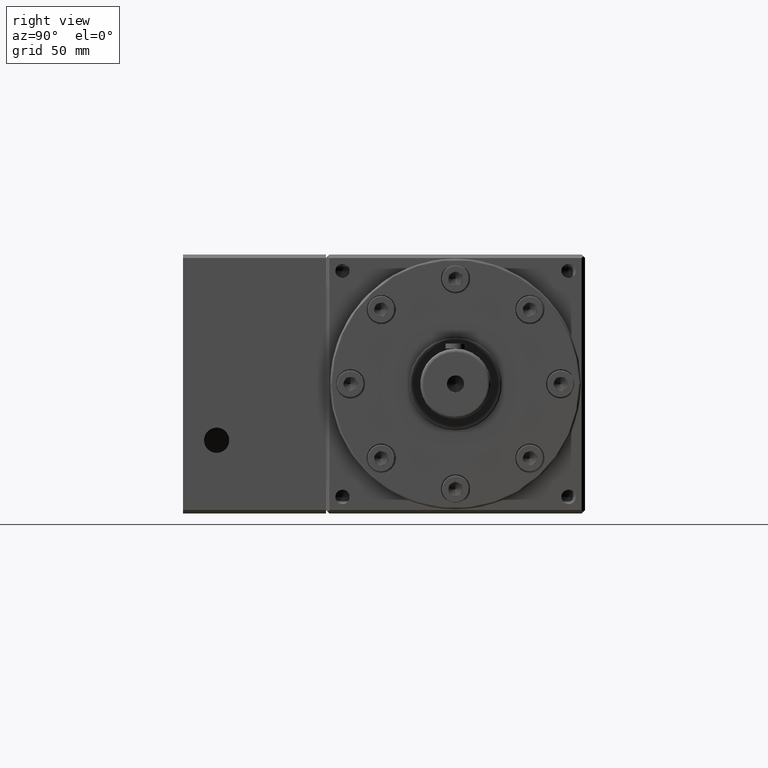
[diagram: clean part render]
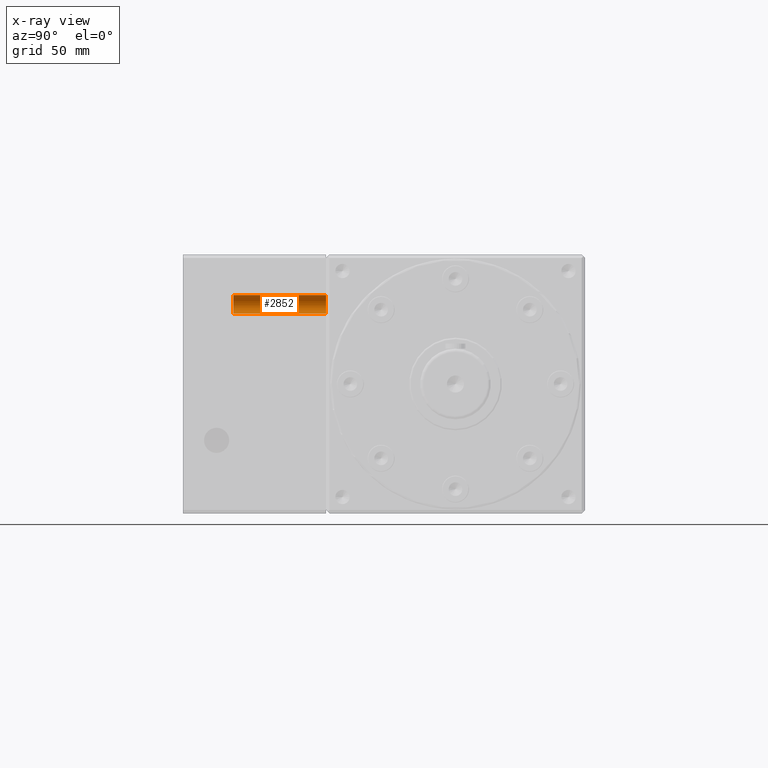
[diagram: x-ray — body ghosted, one internal face saturated and labeled with its STEP entity id]
A machine part, right view, then the same camera in x-ray: the body is ghosted and one INTERNAL B-rep face — a face not visible from any outside direction — is saturated and labeled: STEP entity #2852.
In plain terms, the highlighted cylindrical surface (edge-blend (fillet) strip) has radius 5.5 mm, axis along (-0, -1, -0).
Its self-contained STEP definition (entity closure, byte-faithful):
#74 = VERTEX_POINT ( 'NONE', #6468 ) ;
#2139 = VERTEX_POINT ( 'NONE', #10048 ) ;
#2171 = VERTEX_POINT ( 'NONE', #11179 ) ;
#2852 = ADVANCED_FACE ( 'NONE', ( #3334 ), #18811, .F. ) ;
#3334 = FACE_OUTER_BOUND ( 'NONE', #9226, .T. ) ;
#3339 = ORIENTED_EDGE ( 'NONE', *, *, #6056, .F. ) ;
#5024 = VECTOR ( 'NONE', #18261, 1000.000000000000000 ) ;
#5163 = VERTEX_POINT ( 'NONE', #17318 ) ;
#6056 = EDGE_CURVE ( 'NONE', #2139, #2171, #10904, .T. ) ;
#6162 = CARTESIAN_POINT ( 'NONE',  ( 67.58004365384232400, 150.0000000000000900, 47.32005599896459800 ) ) ;
#6297 = ORIENTED_EDGE ( 'NONE', *, *, #8132, .T. ) ;
#6468 = CARTESIAN_POINT ( 'NONE',  ( 67.58004365384232400, 150.0000000000000900, 41.82005599896140800 ) ) ;
#7115 = ORIENTED_EDGE ( 'NONE', *, *, #9544, .F. ) ;
#7718 = DIRECTION ( 'NONE',  ( 0.0000000000000000000, 0.0000000000000000000, -1.000000000000000000 ) ) ;
#7848 = AXIS2_PLACEMENT_3D ( 'NONE', #6162, #16943, #7718 ) ;
#8047 = AXIS2_PLACEMENT_3D ( 'NONE', #17357, #8135, #18887 ) ;
#8132 = EDGE_CURVE ( 'NONE', #2139, #5163, #17348, .T. ) ;
#8135 = DIRECTION ( 'NONE',  ( 0.0000000000000000000, -1.000000000000000000, 0.0000000000000000000 ) ) ;
#9226 = EDGE_LOOP ( 'NONE', ( #3339, #6297, #7115, #16037 ) ) ;
#9544 = EDGE_CURVE ( 'NONE', #74, #5163, #17043, .T. ) ;
#10048 = CARTESIAN_POINT ( 'NONE',  ( 67.58004365384232400, 205.0000000000000600, 52.82005599896778800 ) ) ;
#10052 = CARTESIAN_POINT ( 'NONE',  ( 67.58004365384232400, 205.0000000000000600, 41.82005599896140800 ) ) ;
#10199 = EDGE_CURVE ( 'NONE', #2171, #74, #15045, .T. ) ;
#10904 = CIRCLE ( 'NONE', #8047, 5.500000000003189400 ) ;
#11179 = CARTESIAN_POINT ( 'NONE',  ( 67.58004365384232400, 205.0000000000000600, 41.82005599896140800 ) ) ;
#14051 = VECTOR ( 'NONE', #17737, 1000.000000000000000 ) ;
#14435 = AXIS2_PLACEMENT_3D ( 'NONE', #17245, #16720, #16845 ) ;
#15045 = LINE ( 'NONE', #10052, #14051 ) ;
#16037 = ORIENTED_EDGE ( 'NONE', *, *, #10199, .F. ) ;
#16718 = CARTESIAN_POINT ( 'NONE',  ( 67.58004365384232400, 205.0000000000000600, 52.82005599896778800 ) ) ;
#16720 = DIRECTION ( 'NONE',  ( -0.0000000000000000000, -1.000000000000000000, -0.0000000000000000000 ) ) ;
#16845 = DIRECTION ( 'NONE',  ( 0.0000000000000000000, 0.0000000000000000000, -1.000000000000000000 ) ) ;
#16943 = DIRECTION ( 'NONE',  ( -0.0000000000000000000, 1.000000000000000000, -0.0000000000000000000 ) ) ;
#17043 = CIRCLE ( 'NONE', #7848, 5.500000000003189400 ) ;
#17245 = CARTESIAN_POINT ( 'NONE',  ( 67.58004365384232400, 205.0000000000000600, 47.32005599896459800 ) ) ;
#17318 = CARTESIAN_POINT ( 'NONE',  ( 67.58004365384232400, 150.0000000000000900, 52.82005599896778800 ) ) ;
#17348 = LINE ( 'NONE', #16718, #5024 ) ;
#17357 = CARTESIAN_POINT ( 'NONE',  ( 67.58004365384232400, 205.0000000000000600, 47.32005599896459800 ) ) ;
#17737 = DIRECTION ( 'NONE',  ( -0.0000000000000000000, -1.000000000000000000, -0.0000000000000000000 ) ) ;
#18261 = DIRECTION ( 'NONE',  ( -0.0000000000000000000, -1.000000000000000000, -0.0000000000000000000 ) ) ;
#18811 = CYLINDRICAL_SURFACE ( 'NONE', #14435, 5.500000000003189400 ) ;
#18887 = DIRECTION ( 'NONE',  ( 0.0000000000000000000, 0.0000000000000000000, -1.000000000000000000 ) ) ;